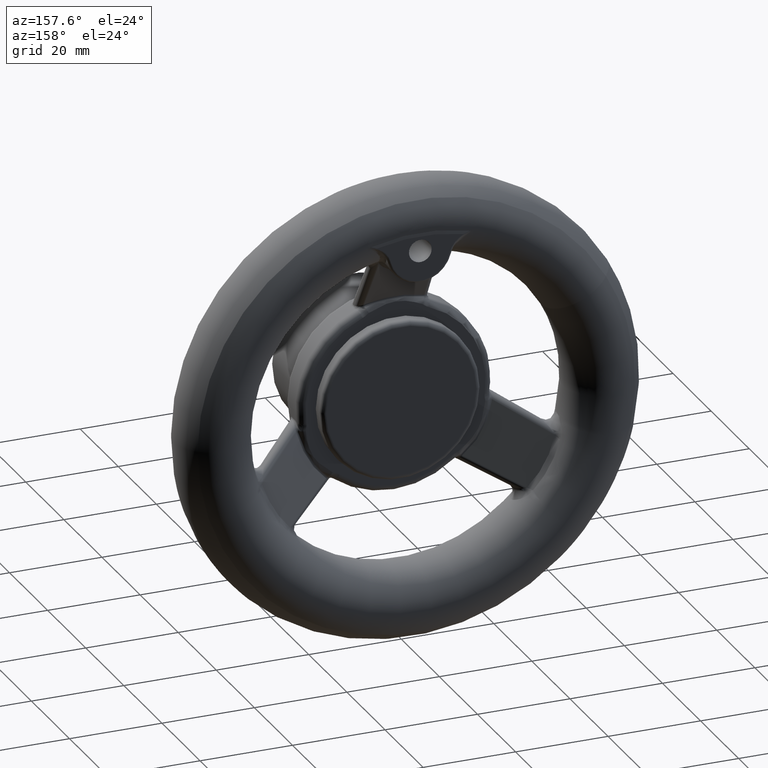
[diagram: clean part render]
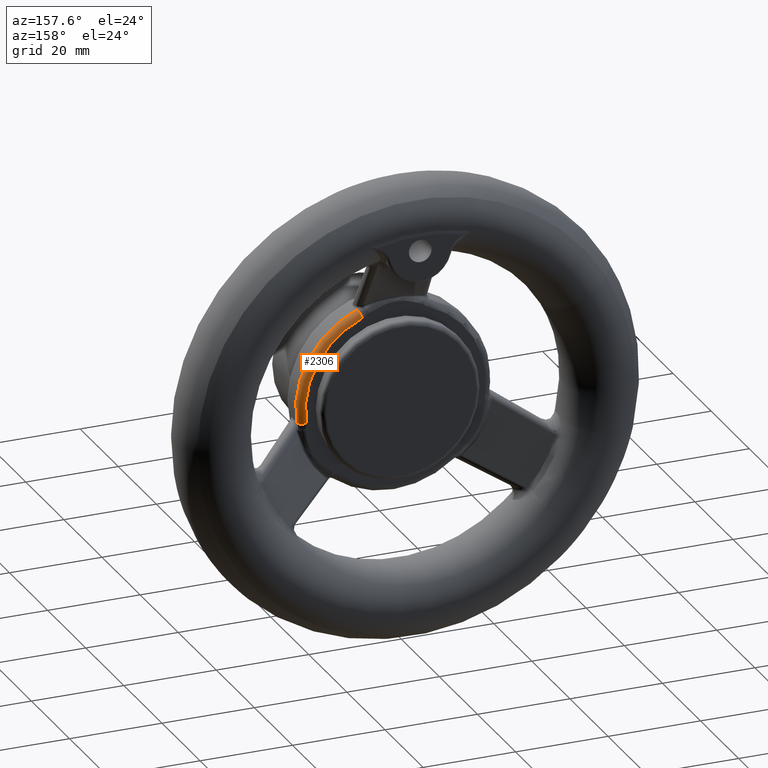
[diagram: same view with one face highlighted and labeled with its STEP entity id]
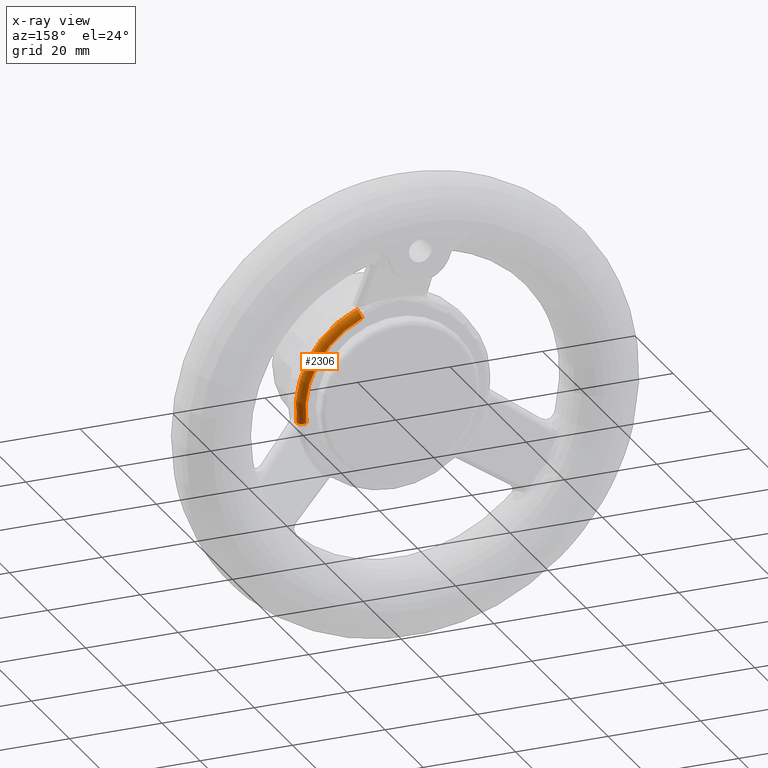
[diagram: x-ray of the same camera — body ghosted, the highlighted face saturated]
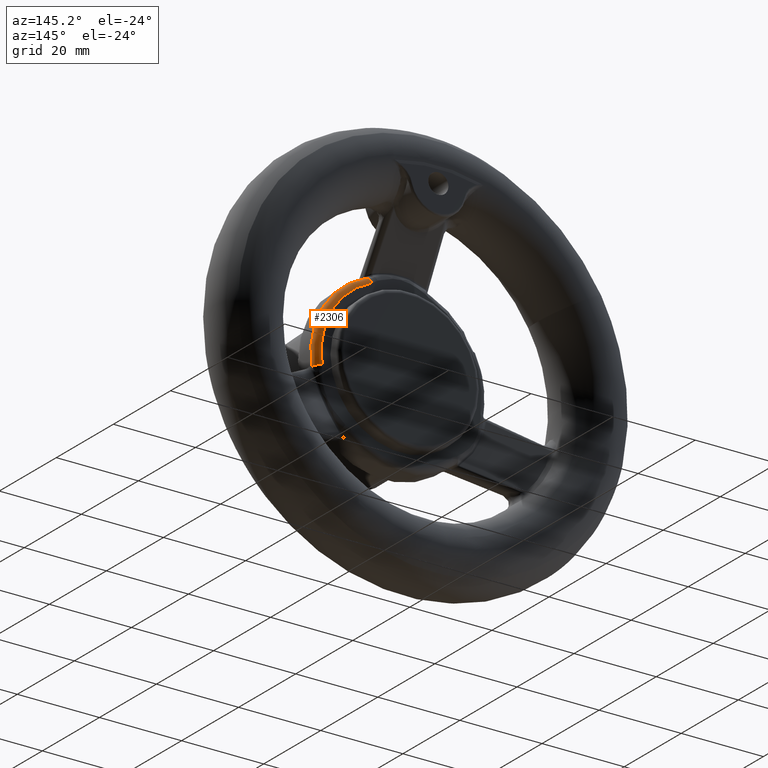
[diagram: same view with one face highlighted and labeled with its STEP entity id]
A machine part, auxiliary view. The second image highlights one B-rep face of the part: STEP entity #2306.
The next image is the same camera in x-ray: the body ghosted, the highlighted face saturated — about 0% of this face is hidden behind the body in this view.
A second angle (auxiliary view) of the same face is appended — the face is thin or edge-on in the first view.
In plain terms, the highlighted toroidal blend (fillet) surface has major radius 19.5 mm and minor (blend) radius 1.5 mm.
Its self-contained STEP definition (entity closure, byte-faithful):
#410=TOROIDAL_SURFACE('',#2516,19.5,1.5);
#529=FACE_OUTER_BOUND('',#702,.T.);
#702=EDGE_LOOP('',(#1875,#1876,#1877,#1878));
#861=CIRCLE('',#2503,21.);
#869=CIRCLE('',#2517,1.5);
#870=CIRCLE('',#2518,1.5);
#871=CIRCLE('',#2519,19.5);
#1061=VERTEX_POINT('',#4901);
#1062=VERTEX_POINT('',#4902);
#1091=VERTEX_POINT('',#5116);
#1092=VERTEX_POINT('',#5118);
#1334=EDGE_CURVE('',#1061,#1062,#861,.T.);
#1367=EDGE_CURVE('',#1091,#1061,#869,.T.);
#1368=EDGE_CURVE('',#1062,#1092,#870,.T.);
#1369=EDGE_CURVE('',#1092,#1091,#871,.T.);
#1875=ORIENTED_EDGE('',*,*,#1367,.T.);
#1876=ORIENTED_EDGE('',*,*,#1334,.T.);
#1877=ORIENTED_EDGE('',*,*,#1368,.T.);
#1878=ORIENTED_EDGE('',*,*,#1369,.T.);
#2306=ADVANCED_FACE('',(#529),#410,.T.);
#2503=AXIS2_PLACEMENT_3D('',#4903,#2838,#2839);
#2516=AXIS2_PLACEMENT_3D('',#5115,#2870,#2871);
#2517=AXIS2_PLACEMENT_3D('',#5117,#2872,#2873);
#2518=AXIS2_PLACEMENT_3D('',#5119,#2874,#2875);
#2519=AXIS2_PLACEMENT_3D('',#5120,#2876,#2877);
#2838=DIRECTION('center_axis',(0.,1.,0.));
#2839=DIRECTION('ref_axis',(0.866025403784439,0.,0.5));
#2870=DIRECTION('center_axis',(0.,1.,0.));
#2871=DIRECTION('ref_axis',(0.,0.,1.));
#2872=DIRECTION('center_axis',(0.929632459854787,0.,-0.368488113219867));
#2873=DIRECTION('ref_axis',(0.,1.,0.));
#2874=DIRECTION('center_axis',(0.14569616288017,0.,0.989329383027713));
#2875=DIRECTION('ref_axis',(0.989329383027713,-1.38017005231935E-10,-0.14569616288017));
#2876=DIRECTION('center_axis',(0.,-1.,0.));
#2877=DIRECTION('ref_axis',(0.866025403784439,0.,0.5));
#4901=CARTESIAN_POINT('',(7.73825037761723,-4.50000000008828,19.5222816569505));
#4902=CARTESIAN_POINT('',(20.775917043582,-4.50000000020703,-3.05961942048357));
#4903=CARTESIAN_POINT('Origin',(0.,-4.5,0.));
#5115=CARTESIAN_POINT('Origin',(0.,-4.5,0.));
#5116=CARTESIAN_POINT('',(7.18551820778743,-3.,18.1278329671683));
#5117=CARTESIAN_POINT('Origin',(7.18551820778743,-4.5,18.1278329671683));
#5118=CARTESIAN_POINT('',(19.2919229690404,-3.,-2.84107517616332));
#5119=CARTESIAN_POINT('Origin',(19.2919229690404,-4.5,-2.84107517616332));
#5120=CARTESIAN_POINT('Origin',(0.,-3.,0.));